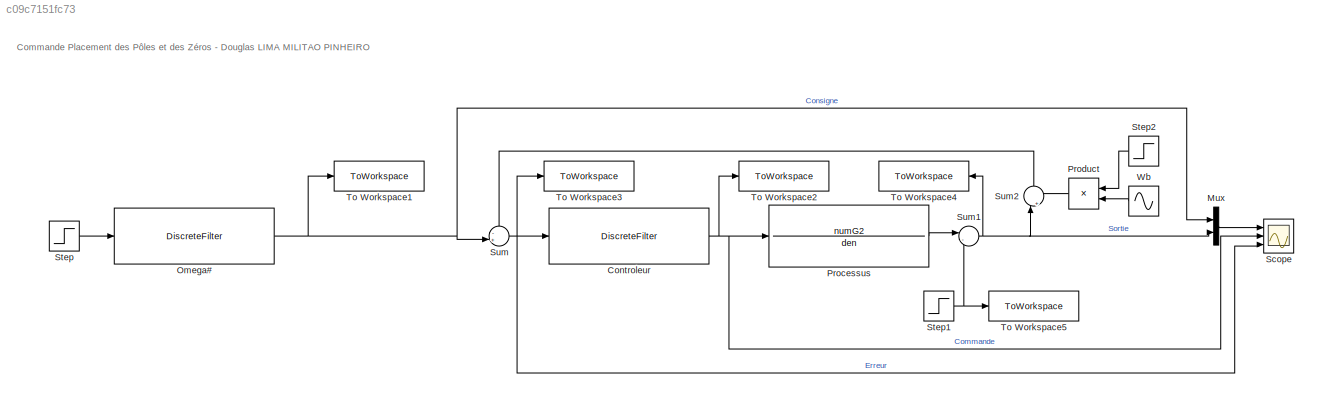
MODEL slx_c09c7151fc73
KIND model
CONFIG AbsTol = auto
CONFIG EnableMultiTasking = off
CONFIG FixedStep = 1e-6
CONFIG MaxStep = auto
CONFIG MinStep = auto
CONFIG RelTol = 1e-3
CONFIG SampleTimeConstraint = Unconstrained
CONFIG Solver = VariableStepAuto
CONFIG SolverName = VariableStepAuto
CONFIG StartTime = 0.0
CONFIG StopTime = 10.0
BLOCK [DiscreteFilter] Controleur
  Denominator = K_den_PP
  InputPortMap = u0
  Numerator = K_num_PP
  Ports = [1, 1]
  SampleTime = Te
BLOCK [Mux] Mux
  DisplayOption = bar
  Inputs = 2
  Ports = [2, 1]
BLOCK [DiscreteFilter] Omega#
  Denominator = Am_omega
  InputPortMap = u0
  Numerator = Bm_omega
  Ports = [1, 1]
  SampleTime = Te
BLOCK [TransferFcn] Processus
  Denominator = den
  Numerator = numG2
BLOCK [Product] Product
  Ports = [2, 1]
BLOCK [Scope] Scope
  Floating = off
  NumInputPorts = 3
  Ports = [3]
  ScopeSpecificationString = Simulink.scopes.TimeScopeBlockCfg('CurrentConfiguration', extmgr.ConfigurationSet(extmgr.Configuration('Core','General UI',true),extmgr.Configuration('Core','Source UI',true),extmgr.Configuration('Sources','WiredSimulink',true),extmgr.Configuration('Visuals','Time Domain',true,'SerializedDisplays',{struct('MinYLimReal','8.99938','MaxYLimReal','11.41195','YLabelReal','','MinYLimMag','8.99938','MaxY...<+2789ch>
BLOCK [Step] Step
  After = 5
  SampleTime = 0
BLOCK [Step] Step1
  After = 15
  SampleTime = 0
  Time = 5
BLOCK [Step] Step2
  SampleTime = 0
  Time = 7
BLOCK [Sum] Sum
  Inputs = -+|
  Ports = [2, 1]
BLOCK [Sum] Sum1
  Inputs = |-+
  Ports = [2, 1]
BLOCK [Sum] Sum2
  Inputs = |++
  Ports = [2, 1]
BLOCK [ToWorkspace] To Workspace1
  FixptAsFi = on
  MaxDataPoints = inf
  Ports = [1]
  SampleTime = tsim
  VariableName = Consigne
BLOCK [ToWorkspace] To Workspace2
  FixptAsFi = on
  MaxDataPoints = inf
  Ports = [1]
  SampleTime = tsim
  VariableName = SignalCommande
BLOCK [ToWorkspace] To Workspace3
  FixptAsFi = on
  MaxDataPoints = inf
  Ports = [1]
  SampleTime = tsim
  VariableName = Erreur
BLOCK [ToWorkspace] To Workspace4
  FixptAsFi = on
  MaxDataPoints = inf
  Ports = [1]
  SampleTime = tsim
  VariableName = Sortie
BLOCK [ToWorkspace] To Workspace5
  FixptAsFi = on
  MaxDataPoints = inf
  Ports = [1]
  SampleTime = tsim
  VariableName = Wy
BLOCK [Sin] Wb
  Amplitude = 3
  Frequency = 2*pi*10
  Ports = [0, 1]
  SampleTime = 0
ANNOTATION (root): Commande Placement des Pôles et des Zéros - Douglas LIMA MILITAO PINHEIRO
NET Controleur:1 -> Processus:1, Scope:2, To Workspace2:1
LINE Mux:1 -> Scope:1
NET Omega#:1 -> Mux:1, Sum:2, To Workspace1:1
LINE Processus:1 -> Sum1:1
LINE Product:1 -> Sum2:2
NET Step1:1 -> Sum1:2, To Workspace5:1
LINE Step2:1 -> Product:1
LINE Step:1 -> Omega#:1
NET Sum1:1 -> Mux:2, Sum2:1, To Workspace4:1
LINE Sum2:1 -> Sum:1
NET Sum:1 -> Controleur:1, Scope:3, To Workspace3:1
LINE Wb:1 -> Product:2
note: NET lines group one-source signal fan-out (src -> all destinations, sorted); 1:1 wires keep LINE
